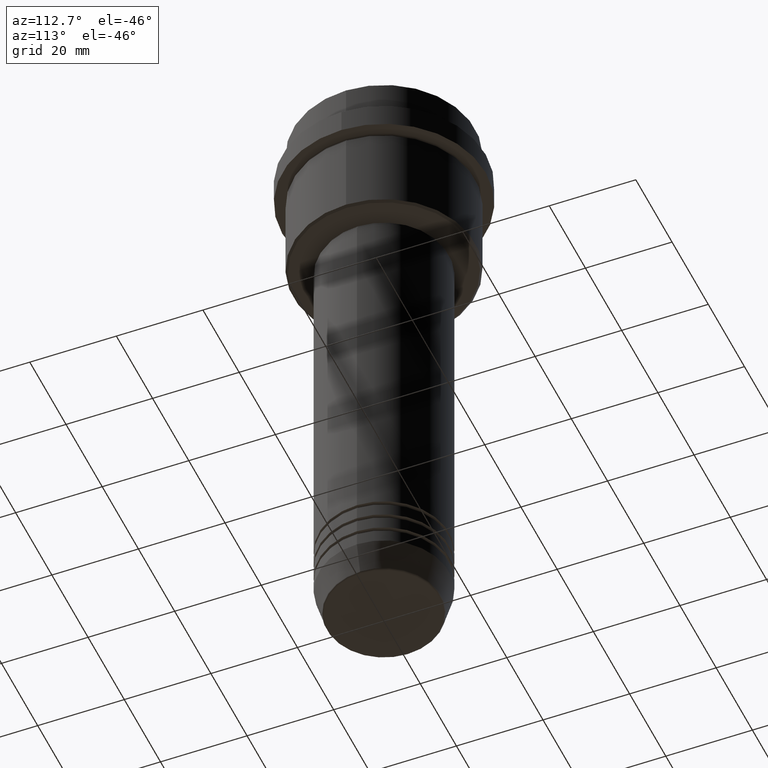
[diagram: clean part render]
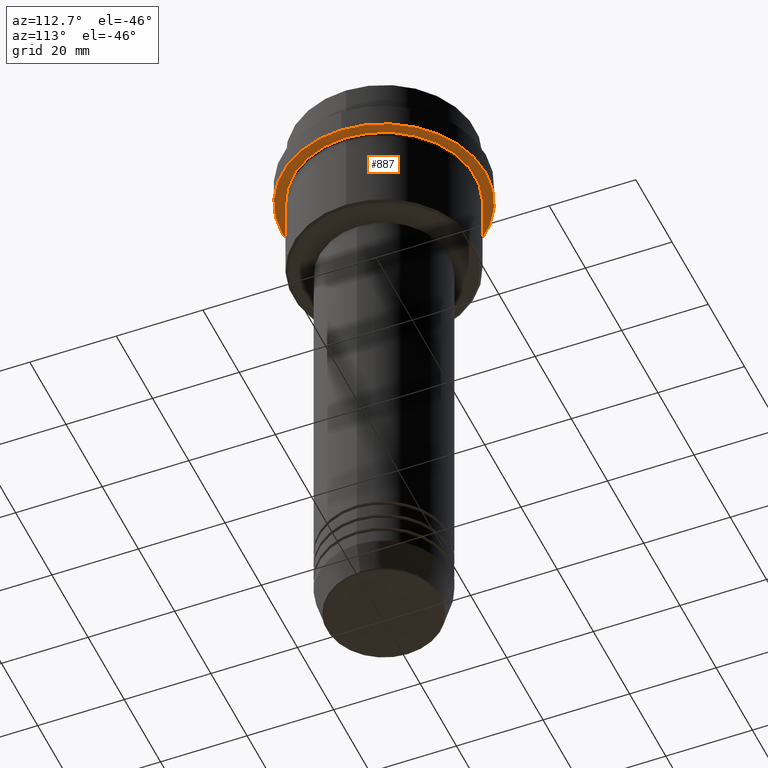
[diagram: same view with one face highlighted and labeled with its STEP entity id]
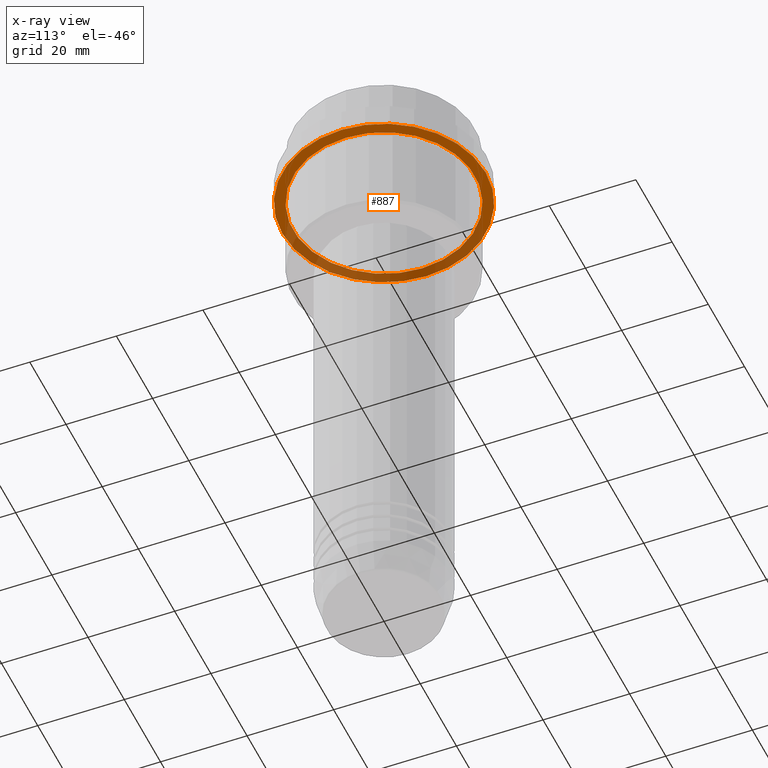
[diagram: x-ray of the same camera — body ghosted, the highlighted face saturated]
A machine part, auxiliary view. The second image highlights one B-rep face of the part: STEP entity #887.
The next image is the same camera in x-ray: the body ghosted, the highlighted face saturated — about 39% of this face is hidden behind the body in this view.
In plain terms, the highlighted planar face has unit normal (0, 0, -1).
Its self-contained STEP definition (entity closure, byte-faithful):
#1 = CARTESIAN_POINT ( 'NONE',  ( 0.000000000000000000, 0.000000000000000000, -15.00000000000000000 ) ) ;
#52 = CIRCLE ( 'NONE', #371, 23.50000000000000355 ) ;
#65 = CARTESIAN_POINT ( 'NONE',  ( 0.000000000000000000, 0.000000000000000000, -15.00000000000000000 ) ) ;
#90 = CARTESIAN_POINT ( 'NONE',  ( 23.50000000000000355, 0.000000000000000000, -15.00000000000000000 ) ) ;
#103 = EDGE_CURVE ( 'NONE', #1342, #126, #369, .T. ) ;
#117 = DIRECTION ( 'NONE',  ( -1.000000000000000000, 0.000000000000000000, -0.000000000000000000 ) ) ;
#122 = ORIENTED_EDGE ( 'NONE', *, *, #925, .F. ) ;
#126 = VERTEX_POINT ( 'NONE', #90 ) ;
#133 = DIRECTION ( 'NONE',  ( 0.000000000000000000, 0.000000000000000000, -1.000000000000000000 ) ) ;
#201 = DIRECTION ( 'NONE',  ( 1.000000000000000000, 0.000000000000000000, 0.000000000000000000 ) ) ;
#358 = PLANE ( 'NONE',  #901 ) ;
#369 = CIRCLE ( 'NONE', #581, 23.50000000000000355 ) ;
#371 = AXIS2_PLACEMENT_3D ( 'NONE', #1, #755, #987 ) ;
#376 = ORIENTED_EDGE ( 'NONE', *, *, #103, .F. ) ;
#483 = DIRECTION ( 'NONE',  ( -0.000000000000000000, -0.000000000000000000, 1.000000000000000000 ) ) ;
#497 = DIRECTION ( 'NONE',  ( -0.000000000000000000, -0.000000000000000000, 1.000000000000000000 ) ) ;
#552 = ORIENTED_EDGE ( 'NONE', *, *, #591, .T. ) ;
#557 = DIRECTION ( 'NONE',  ( -0.000000000000000000, -0.000000000000000000, 1.000000000000000000 ) ) ;
#579 = DIRECTION ( 'NONE',  ( -1.000000000000000000, 0.000000000000000000, 0.000000000000000000 ) ) ;
#581 = AXIS2_PLACEMENT_3D ( 'NONE', #65, #497, #201 ) ;
#591 = EDGE_CURVE ( 'NONE', #1234, #709, #1108, .T. ) ;
#600 = CARTESIAN_POINT ( 'NONE',  ( -23.50000000000000711, 2.877919977996281109E-15, -15.00000000000000000 ) ) ;
#621 = CARTESIAN_POINT ( 'NONE',  ( 20.99999999999999289, 2.571758278209440872E-15, -15.00000000000000178 ) ) ;
#708 = CARTESIAN_POINT ( 'NONE',  ( 0.000000000000000000, 0.000000000000000000, -15.00000000000000178 ) ) ;
#709 = VERTEX_POINT ( 'NONE', #621 ) ;
#714 = EDGE_LOOP ( 'NONE', ( #552, #1196 ) ) ;
#754 = EDGE_LOOP ( 'NONE', ( #122, #376 ) ) ;
#755 = DIRECTION ( 'NONE',  ( -0.000000000000000000, -0.000000000000000000, 1.000000000000000000 ) ) ;
#769 = DIRECTION ( 'NONE',  ( -1.000000000000000000, 0.000000000000000000, 0.000000000000000000 ) ) ;
#882 = AXIS2_PLACEMENT_3D ( 'NONE', #1177, #557, #769 ) ;
#887 = ADVANCED_FACE ( 'NONE', ( #1326, #1232 ), #358, .T. ) ;
#901 = AXIS2_PLACEMENT_3D ( 'NONE', #1213, #133, #117 ) ;
#903 = CIRCLE ( 'NONE', #921, 20.99999999999999289 ) ;
#921 = AXIS2_PLACEMENT_3D ( 'NONE', #708, #483, #579 ) ;
#925 = EDGE_CURVE ( 'NONE', #126, #1342, #52, .T. ) ;
#987 = DIRECTION ( 'NONE',  ( 1.000000000000000000, 0.000000000000000000, 0.000000000000000000 ) ) ;
#1108 = CIRCLE ( 'NONE', #882, 20.99999999999999289 ) ;
#1115 = CARTESIAN_POINT ( 'NONE',  ( -20.99999999999999289, 0.000000000000000000, -15.00000000000000178 ) ) ;
#1177 = CARTESIAN_POINT ( 'NONE',  ( 0.000000000000000000, 0.000000000000000000, -15.00000000000000178 ) ) ;
#1196 = ORIENTED_EDGE ( 'NONE', *, *, #1273, .T. ) ;
#1213 = CARTESIAN_POINT ( 'NONE',  ( 0.000000000000000000, 23.50000000000000355, -15.00000000000000178 ) ) ;
#1232 = FACE_OUTER_BOUND ( 'NONE', #754, .T. ) ;
#1234 = VERTEX_POINT ( 'NONE', #1115 ) ;
#1273 = EDGE_CURVE ( 'NONE', #709, #1234, #903, .T. ) ;
#1326 = FACE_BOUND ( 'NONE', #714, .T. ) ;
#1342 = VERTEX_POINT ( 'NONE', #600 ) ;